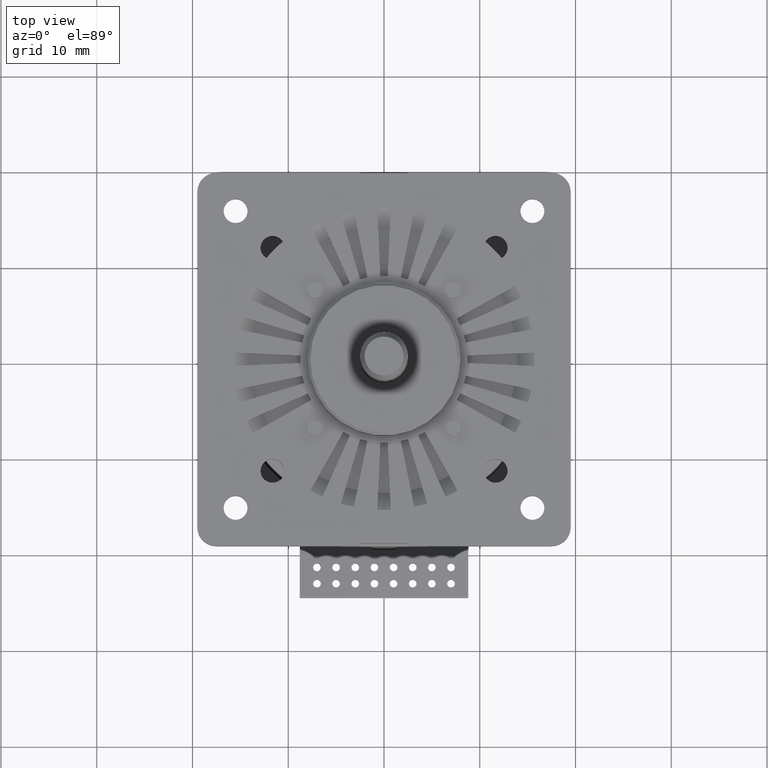
[diagram: clean part render]
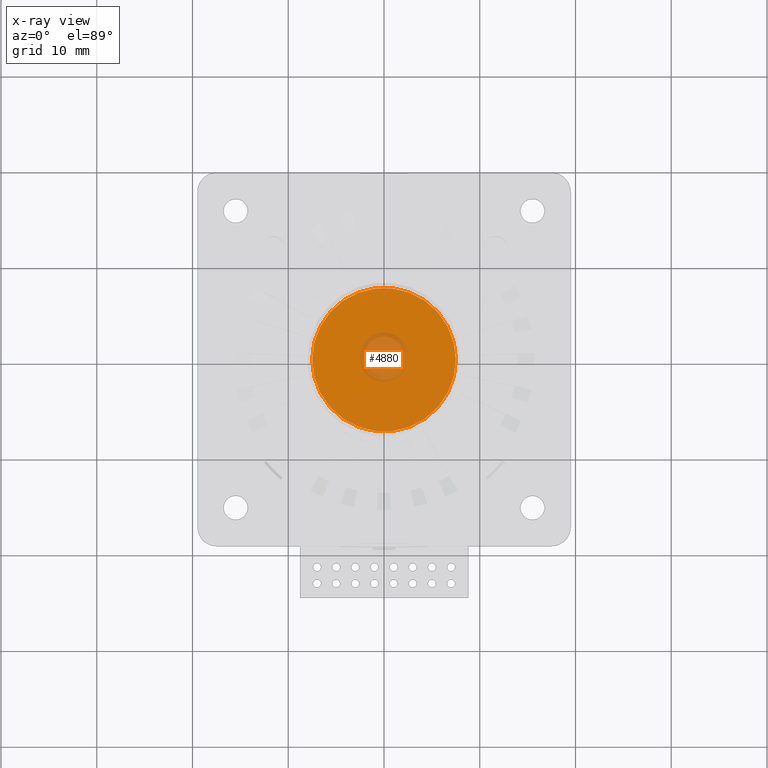
[diagram: x-ray — body ghosted, one internal face saturated and labeled with its STEP entity id]
A machine part, top view, then the same camera in x-ray: the body is ghosted and one INTERNAL B-rep face — a face not visible from any outside direction — is saturated and labeled: STEP entity #4880.
In plain terms, the highlighted planar face has unit normal (0, 0, 1).
Its self-contained STEP definition (entity closure, byte-faithful):
#4739=CARTESIAN_POINT('',(0.E0,0.E0,0.E0));
#4740=DIRECTION('',(0.E0,0.E0,-1.E0));
#4741=DIRECTION('',(1.E0,0.E0,0.E0));
#4742=AXIS2_PLACEMENT_3D('',#4739,#4740,#4741);
#4744=CARTESIAN_POINT('',(0.E0,0.E0,0.E0));
#4745=DIRECTION('',(0.E0,0.E0,-1.E0));
#4746=DIRECTION('',(-1.E0,0.E0,0.E0));
#4747=AXIS2_PLACEMENT_3D('',#4744,#4745,#4746);
#4857=CARTESIAN_POINT('',(-7.5E0,0.E0,0.E0));
#4858=CARTESIAN_POINT('',(7.5E0,0.E0,0.E0));
#4859=VERTEX_POINT('',#4857);
#4860=VERTEX_POINT('',#4858);
#4869=CARTESIAN_POINT('',(0.E0,0.E0,0.E0));
#4870=DIRECTION('',(0.E0,0.E0,1.E0));
#4871=DIRECTION('',(1.E0,0.E0,0.E0));
#4872=AXIS2_PLACEMENT_3D('',#4869,#4870,#4871);
#4873=PLANE('',#4872);
#4875=ORIENTED_EDGE('',*,*,#4874,.F.);
#4877=ORIENTED_EDGE('',*,*,#4876,.F.);
#4878=EDGE_LOOP('',(#4875,#4877));
#4879=FACE_OUTER_BOUND('',#4878,.F.);
#4880=ADVANCED_FACE('',(#4879),#4873,.F.);
#4743=CIRCLE('',#4742,7.5E0);
#4748=CIRCLE('',#4747,7.5E0);
#4874=EDGE_CURVE('',#4860,#4859,#4743,.T.);
#4876=EDGE_CURVE('',#4859,#4860,#4748,.T.);